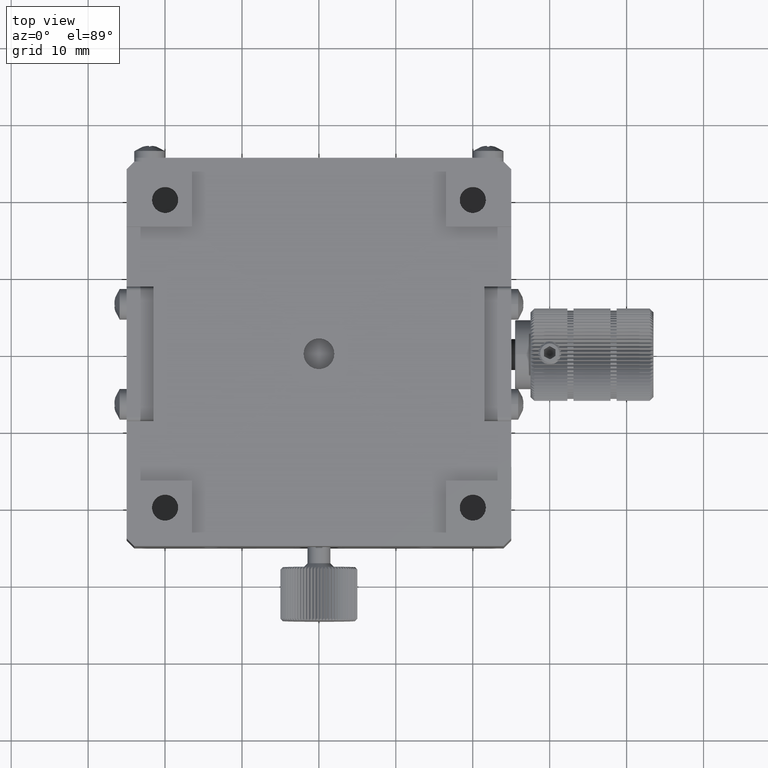
[diagram: clean part render]
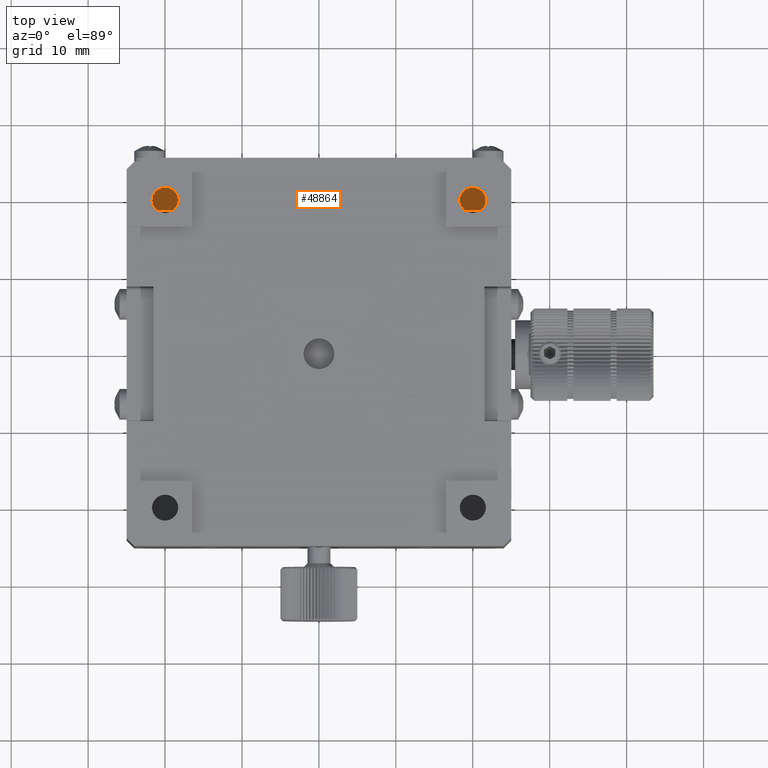
[diagram: same view with one face highlighted and labeled with its STEP entity id]
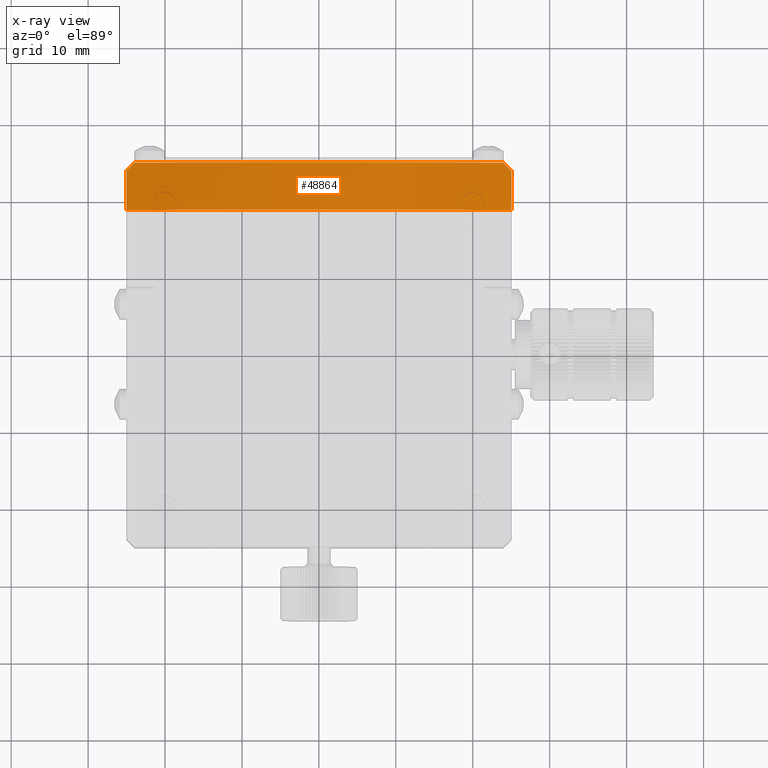
[diagram: x-ray of the same camera — body ghosted, the highlighted face saturated]
A machine part, top view. The second image highlights one B-rep face of the part: STEP entity #48864.
The next image is the same camera in x-ray: the body ghosted, the highlighted face saturated — about 0% of this face is hidden behind the body in this view.
In plain terms, the highlighted cylindrical surface (partial cylindrical patch) has radius 63 mm, axis along (0, 1, 0).
Its self-contained STEP definition (entity closure, byte-faithful):
#926 =( BOUNDED_CURVE ( )  B_SPLINE_CURVE ( 3, ( #9463, #25152, #45987, #9108 ),
 .UNSPECIFIED., .F., .F. ) 
 B_SPLINE_CURVE_WITH_KNOTS ( ( 4, 4 ),
 ( 1.961622457370338246, 1.978852004096175010 ),
 .UNSPECIFIED. ) 
 CURVE ( )  GEOMETRIC_REPRESENTATION_ITEM ( )  RATIONAL_B_SPLINE_CURVE ( ( 1.000000000000000000, 0.9999752620462949437, 0.9999752620462949437, 1.000000000000000000 ) ) 
 REPRESENTATION_ITEM ( '' )  );
#2656 = ORIENTED_EDGE ( 'NONE', *, *, #64180, .T. ) ;
#2688 = CARTESIAN_POINT ( 'NONE',  ( 23.99999999999992539, 25.00000000000000000, 58.24946351684282320 ) ) ;
#3538 = DIRECTION ( 'NONE',  ( 0.000000000000000000, -1.000000000000000000, -0.000000000000000000 ) ) ;
#4414 = CARTESIAN_POINT ( 'NONE',  ( -25.00000000000006750, 25.00000000000000000, 57.82732917920381510 ) ) ;
#5889 = CARTESIAN_POINT ( 'NONE',  ( -25.00000000000006750, 24.00000000000000711, 57.82732917920381510 ) ) ;
#6080 = ORIENTED_EDGE ( 'NONE', *, *, #35813, .T. ) ;
#6757 = AXIS2_PLACEMENT_3D ( 'NONE', #21736, #42609, #59616 ) ;
#8034 = VERTEX_POINT ( 'NONE', #31767 ) ;
#9108 = CARTESIAN_POINT ( 'NONE',  ( -25.00000000000006750, 24.00000000000000711, 57.82732917920381510 ) ) ;
#9463 = CARTESIAN_POINT ( 'NONE',  ( -24.00000000000006395, 25.00000000000000000, 58.24946351684276635 ) ) ;
#11334 = CARTESIAN_POINT ( 'NONE',  ( 24.99999999999993605, 23.99999999999999289, 57.82732917920387194 ) ) ;
#12811 = CYLINDRICAL_SURFACE ( 'NONE', #47062, 63.00000000000000000 ) ;
#17057 = EDGE_LOOP ( 'NONE', ( #33771, #34738, #45302, #2656, #64701, #6080 ) ) ;
#18696 = FACE_OUTER_BOUND ( 'NONE', #17057, .T. ) ;
#19627 = VECTOR ( 'NONE', #3538, 1000.000000000000000 ) ;
#20246 = CARTESIAN_POINT ( 'NONE',  ( 24.99999999999993605, 25.00000000000000000, 57.82732917920387194 ) ) ;
#21736 = CARTESIAN_POINT ( 'NONE',  ( 0.000000000000000000, 18.85000000000000142, 0.000000000000000000 ) ) ;
#25152 = CARTESIAN_POINT ( 'NONE',  ( -24.33454142244891472, 24.66545857755116700, 58.11162543810321779 ) ) ;
#29078 = CARTESIAN_POINT ( 'NONE',  ( 24.33454142244879392, 24.66545857755113502, 58.11162543810327463 ) ) ;
#31767 = CARTESIAN_POINT ( 'NONE',  ( -25.00000000000006750, 18.85000000000000142, 57.82732917920381510 ) ) ;
#32488 = DIRECTION ( 'NONE',  ( 0.000000000000000000, 1.000000000000000000, 0.000000000000000000 ) ) ;
#33771 = ORIENTED_EDGE ( 'NONE', *, *, #67846, .F. ) ;
#34719 = CARTESIAN_POINT ( 'NONE',  ( 24.99999999999993605, 18.85000000000000142, 57.82732917920387194 ) ) ;
#34738 = ORIENTED_EDGE ( 'NONE', *, *, #51169, .T. ) ;
#35813 = EDGE_CURVE ( 'NONE', #8034, #37552, #44576, .T. ) ;
#35901 = VECTOR ( 'NONE', #47223, 1000.000000000000000 ) ;
#36275 = LINE ( 'NONE', #20246, #19627 ) ;
#37552 = VERTEX_POINT ( 'NONE', #34719 ) ;
#37724 = EDGE_CURVE ( 'NONE', #8034, #58010, #46872, .T. ) ;
#38764 =( BOUNDED_CURVE ( )  B_SPLINE_CURVE ( 3, ( #11334, #44039, #29078, #55490 ),
 .UNSPECIFIED., .F., .F. ) 
 B_SPLINE_CURVE_WITH_KNOTS ( ( 4, 4 ),
 ( 4.304333303083411444, 4.321562849809247986 ),
 .UNSPECIFIED. ) 
 CURVE ( )  GEOMETRIC_REPRESENTATION_ITEM ( )  RATIONAL_B_SPLINE_CURVE ( ( 1.000000000000000000, 0.9999752620462949437, 0.9999752620462949437, 1.000000000000000000 ) ) 
 REPRESENTATION_ITEM ( '' )  );
#38905 = DIRECTION ( 'NONE',  ( 0.000000000000000000, 0.000000000000000000, 1.000000000000000000 ) ) ;
#39250 = EDGE_CURVE ( 'NONE', #67150, #62935, #51735, .T. ) ;
#39540 = AXIS2_PLACEMENT_3D ( 'NONE', #64120, #32488, #53683 ) ;
#42609 = DIRECTION ( 'NONE',  ( 0.000000000000000000, 1.000000000000000000, 0.000000000000000000 ) ) ;
#43428 = CARTESIAN_POINT ( 'NONE',  ( 24.99999999999993605, 23.99999999999999289, 57.82732917920387194 ) ) ;
#43674 = CARTESIAN_POINT ( 'NONE',  ( -24.00000000000006395, 25.00000000000000000, 58.24946351684276635 ) ) ;
#44039 = CARTESIAN_POINT ( 'NONE',  ( 24.66788300197067940, 24.33211699802925310, 57.97091051122427530 ) ) ;
#44576 = CIRCLE ( 'NONE', #6757, 63.00000000000000000 ) ;
#45302 = ORIENTED_EDGE ( 'NONE', *, *, #39250, .F. ) ;
#45987 = CARTESIAN_POINT ( 'NONE',  ( -24.66788300197080730, 24.33211699802927797, 57.97091051122422556 ) ) ;
#46872 = LINE ( 'NONE', #4414, #35901 ) ;
#47062 = AXIS2_PLACEMENT_3D ( 'NONE', #51035, #66993, #38905 ) ;
#47223 = DIRECTION ( 'NONE',  ( 0.000000000000000000, 1.000000000000000000, -0.000000000000000000 ) ) ;
#48864 = ADVANCED_FACE ( 'NONE', ( #18696 ), #12811, .T. ) ;
#50639 = VERTEX_POINT ( 'NONE', #43428 ) ;
#51035 = CARTESIAN_POINT ( 'NONE',  ( 0.000000000000000000, 0.000000000000000000, 0.000000000000000000 ) ) ;
#51169 = EDGE_CURVE ( 'NONE', #50639, #62935, #38764, .T. ) ;
#51735 = CIRCLE ( 'NONE', #39540, 63.00000000000000000 ) ;
#53683 = DIRECTION ( 'NONE',  ( 0.000000000000000000, 0.000000000000000000, 1.000000000000000000 ) ) ;
#55490 = CARTESIAN_POINT ( 'NONE',  ( 23.99999999999992539, 25.00000000000000000, 58.24946351684282320 ) ) ;
#58010 = VERTEX_POINT ( 'NONE', #5889 ) ;
#59616 = DIRECTION ( 'NONE',  ( 0.000000000000000000, 0.000000000000000000, 1.000000000000000000 ) ) ;
#62935 = VERTEX_POINT ( 'NONE', #2688 ) ;
#64120 = CARTESIAN_POINT ( 'NONE',  ( 0.000000000000000000, 25.00000000000000000, 0.000000000000000000 ) ) ;
#64180 = EDGE_CURVE ( 'NONE', #67150, #58010, #926, .T. ) ;
#64701 = ORIENTED_EDGE ( 'NONE', *, *, #37724, .F. ) ;
#66993 = DIRECTION ( 'NONE',  ( 0.000000000000000000, 1.000000000000000000, 0.000000000000000000 ) ) ;
#67150 = VERTEX_POINT ( 'NONE', #43674 ) ;
#67846 = EDGE_CURVE ( 'NONE', #50639, #37552, #36275, .T. ) ;